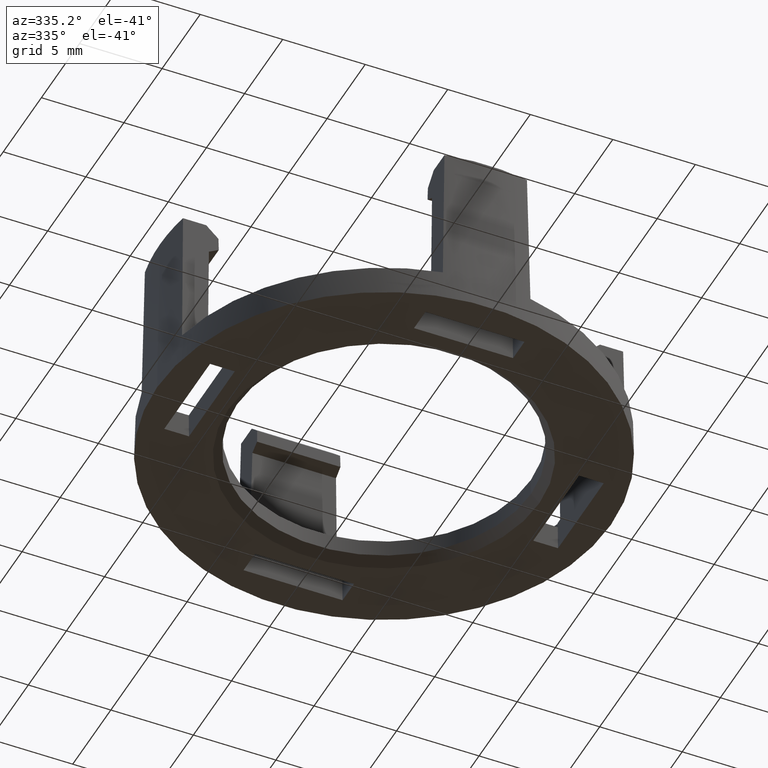
[diagram: clean part render]
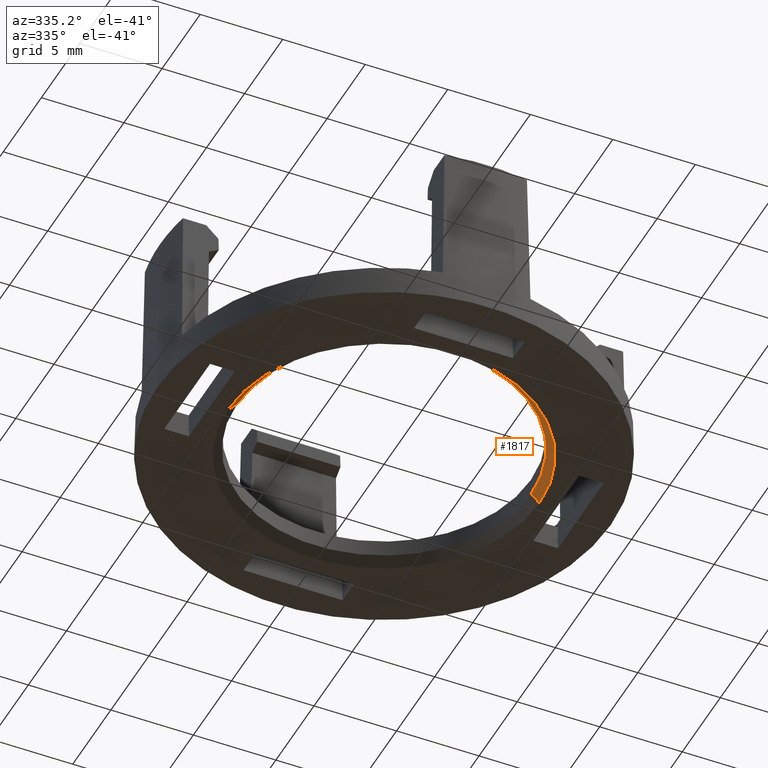
[diagram: same view with one face highlighted and labeled with its STEP entity id]
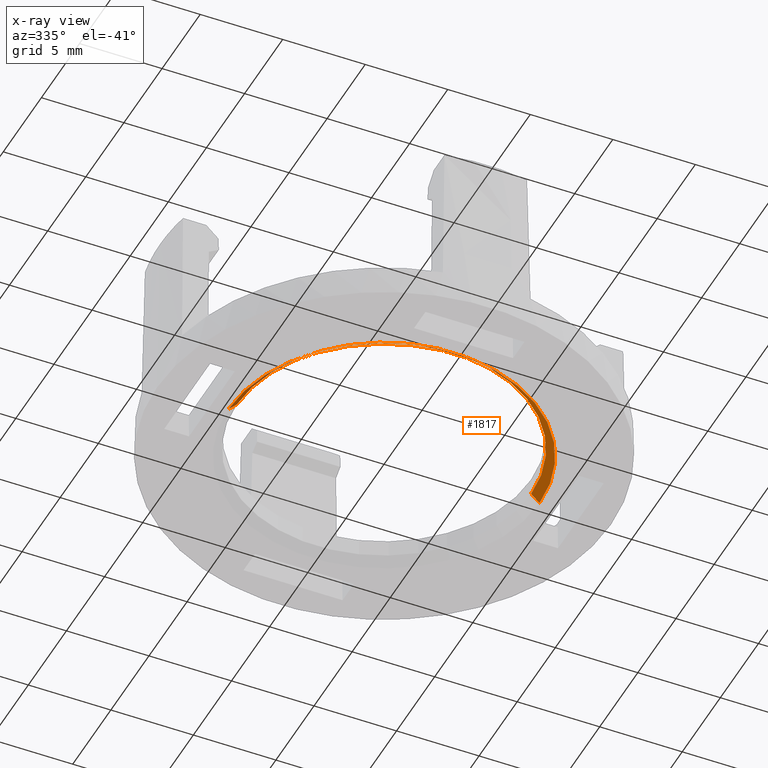
[diagram: x-ray of the same camera — body ghosted, the highlighted face saturated]
A machine part, auxiliary view. The second image highlights one B-rep face of the part: STEP entity #1817.
The next image is the same camera in x-ray: the body ghosted, the highlighted face saturated — about 0% of this face is hidden behind the body in this view.
In plain terms, the highlighted conical surface has half-angle 45 deg.
Its self-contained STEP definition (entity closure, byte-faithful):
#186=DIRECTION('',(7.071067811865E-1,0.E0,-7.071067811866E-1));
#187=VECTOR('',#186,7.071067811865E-1);
#188=CARTESIAN_POINT('',(8.917455064928E0,0.E0,-1.E0));
#189=LINE('',#188,#187);
#193=CARTESIAN_POINT('',(0.E0,0.E0,-1.E0));
#194=DIRECTION('',(0.E0,0.E0,-1.E0));
#195=DIRECTION('',(1.E0,0.E0,0.E0));
#196=AXIS2_PLACEMENT_3D('',#193,#194,#195);
#201=DIRECTION('',(-7.071067811865E-1,0.E0,-7.071067811866E-1));
#202=VECTOR('',#201,7.071067811865E-1);
#203=CARTESIAN_POINT('',(-8.917455064928E0,0.E0,-1.E0));
#204=LINE('',#203,#202);
#232=CARTESIAN_POINT('',(0.E0,0.E0,-1.5E0));
#233=DIRECTION('',(0.E0,0.E0,1.E0));
#234=DIRECTION('',(-1.E0,0.E0,0.E0));
#235=AXIS2_PLACEMENT_3D('',#232,#233,#234);
#1458=CARTESIAN_POINT('',(8.917455064928E0,0.E0,-1.E0));
#1459=VERTEX_POINT('',#1458);
#1460=CARTESIAN_POINT('',(-8.917455064928E0,0.E0,-1.E0));
#1461=VERTEX_POINT('',#1460);
#1693=CARTESIAN_POINT('',(9.417455064928E0,0.E0,-1.5E0));
#1694=CARTESIAN_POINT('',(-9.417455064928E0,0.E0,-1.5E0));
#1695=VERTEX_POINT('',#1693);
#1696=VERTEX_POINT('',#1694);
#1803=CARTESIAN_POINT('',(0.E0,0.E0,-1.25E0));
#1804=DIRECTION('',(0.E0,0.E0,-1.E0));
#1805=DIRECTION('',(1.E0,0.E0,0.E0));
#1806=AXIS2_PLACEMENT_3D('',#1803,#1804,#1805);
#1807=CONICAL_SURFACE('',#1806,9.167455064928E0,4.5E1);
#1809=ORIENTED_EDGE('',*,*,#1808,.T.);
#1811=ORIENTED_EDGE('',*,*,#1810,.F.);
#1812=ORIENTED_EDGE('',*,*,#1797,.T.);
#1814=ORIENTED_EDGE('',*,*,#1813,.T.);
#1815=EDGE_LOOP('',(#1809,#1811,#1812,#1814));
#1816=FACE_OUTER_BOUND('',#1815,.F.);
#1817=ADVANCED_FACE('',(#1816),#1807,.F.);
#197=CIRCLE('',#196,8.917455064928E0);
#236=CIRCLE('',#235,9.417455064928E0);
#1797=EDGE_CURVE('',#1459,#1461,#197,.T.);
#1808=EDGE_CURVE('',#1696,#1695,#236,.T.);
#1810=EDGE_CURVE('',#1459,#1695,#189,.T.);
#1813=EDGE_CURVE('',#1461,#1696,#204,.T.);